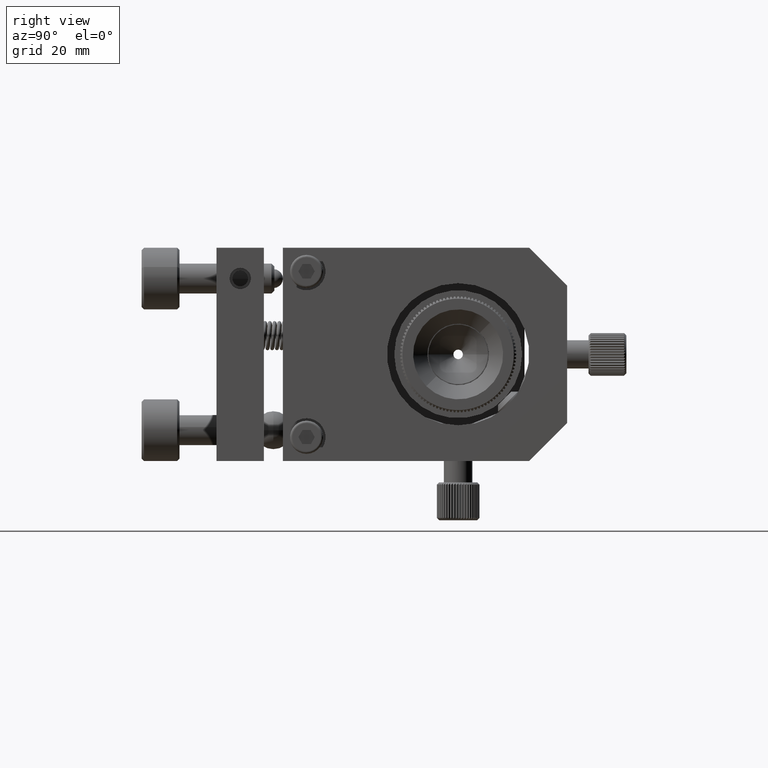
[diagram: clean part render]
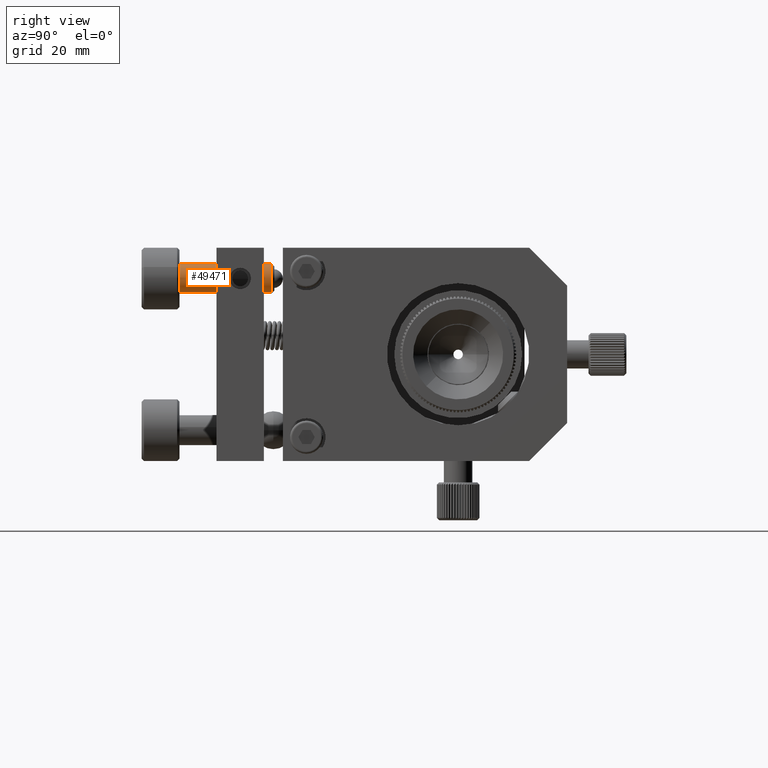
[diagram: same view with one face highlighted and labeled with its STEP entity id]
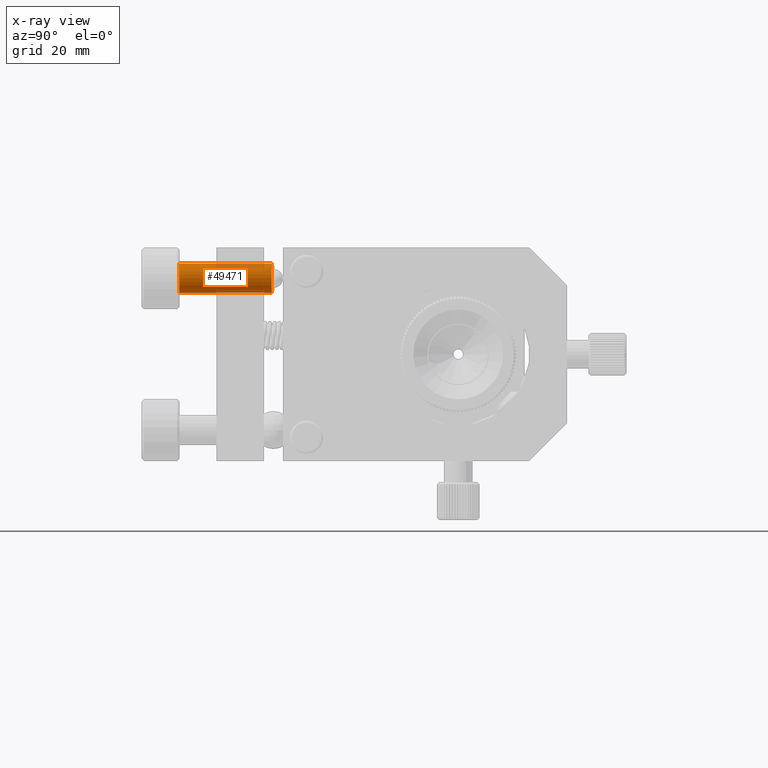
[diagram: x-ray of the same camera — body ghosted, the highlighted face saturated]
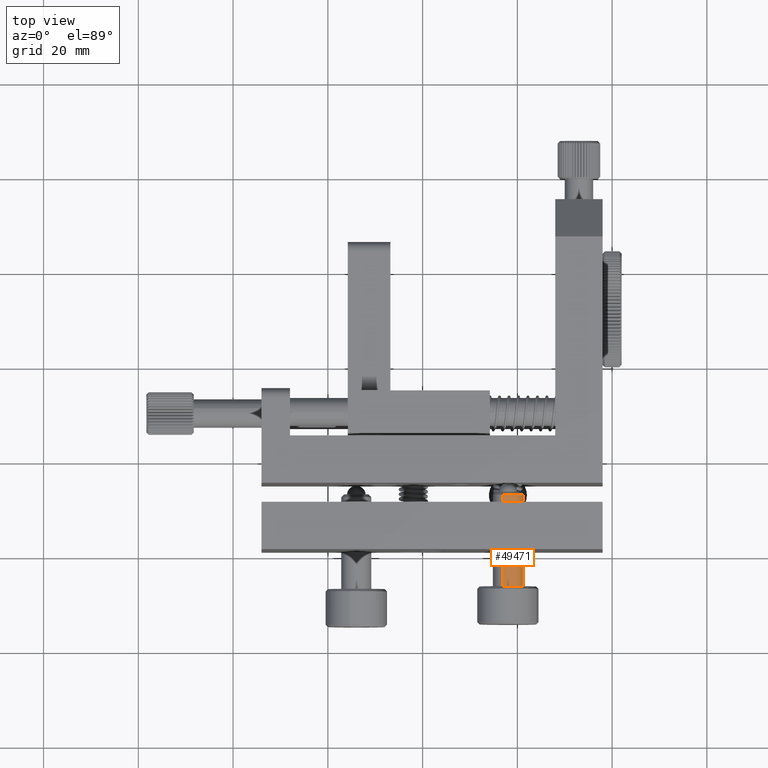
[diagram: same view with one face highlighted and labeled with its STEP entity id]
A machine part, right view. The second image highlights one B-rep face of the part: STEP entity #49471.
The next image is the same camera in x-ray: the body ghosted, the highlighted face saturated — about 12% of this face is hidden behind the body in this view.
A second angle (top view) of the same face is appended — the face is thin or edge-on in the first view.
In plain terms, the highlighted cylindrical surface (edge-blend (fillet) strip) has radius 3.175 mm, axis along (-0, -1, -0).
Its self-contained STEP definition (entity closure, byte-faithful):
#2354 = VERTEX_POINT ( 'NONE', #55713 ) ;
#7906 = EDGE_CURVE ( 'NONE', #58047, #22934, #21869, .T. ) ;
#10266 = AXIS2_PLACEMENT_3D ( 'NONE', #25909, #23058, #57489 ) ;
#11157 = CIRCLE ( 'NONE', #36179, 3.174999999999998000 ) ;
#11658 = ORIENTED_EDGE ( 'NONE', *, *, #64538, .F. ) ;
#11893 = DIRECTION ( 'NONE',  ( -3.700023634175780200E-016, -1.000000000000000000, -6.420384007291740800E-017 ) ) ;
#11928 = LINE ( 'NONE', #28779, #53285 ) ;
#11957 = CARTESIAN_POINT ( 'NONE',  ( 17.99999999999995400, -7.400000000000045700, 16.00000000000000400 ) ) ;
#14851 = VERTEX_POINT ( 'NONE', #38349 ) ;
#16923 = FACE_OUTER_BOUND ( 'NONE', #37486, .T. ) ;
#16998 = DIRECTION ( 'NONE',  ( -0.3765727353977352800, 0.0000000000000000000, 0.9263870546132795300 ) ) ;
#18557 = AXIS2_PLACEMENT_3D ( 'NONE', #32564, #11893, #16998 ) ;
#20709 = ORIENTED_EDGE ( 'NONE', *, *, #61688, .T. ) ;
#21869 = CIRCLE ( 'NONE', #10266, 3.174999999999998900 ) ;
#22934 = VERTEX_POINT ( 'NONE', #51402 ) ;
#23058 = DIRECTION ( 'NONE',  ( 3.469446951953611700E-016, 1.000000000000000000, 1.209268137318281300E-016 ) ) ;
#23187 = DIRECTION ( 'NONE',  ( -3.700023634175780200E-016, -1.000000000000000000, -6.420384007291742000E-017 ) ) ;
#25909 = CARTESIAN_POINT ( 'NONE',  ( 17.99999999999994700, -26.80000000000001100, 15.99999999999999600 ) ) ;
#27626 = DIRECTION ( 'NONE',  ( -3.700023634175780700E-016, -1.000000000000000000, -6.420384007291729700E-017 ) ) ;
#28379 = LINE ( 'NONE', #52436, #42502 ) ;
#28779 = CARTESIAN_POINT ( 'NONE',  ( 19.19561843488776300, -6.800000000000042500, 13.05872110160284400 ) ) ;
#32564 = CARTESIAN_POINT ( 'NONE',  ( 17.99999999999995400, -6.800000000000042500, 16.00000000000000400 ) ) ;
#33933 = CYLINDRICAL_SURFACE ( 'NONE', #18557, 3.174999999999998000 ) ;
#36179 = AXIS2_PLACEMENT_3D ( 'NONE', #11957, #27626, #57502 ) ;
#37486 = EDGE_LOOP ( 'NONE', ( #11658, #20709, #61370, #57010 ) ) ;
#38349 = CARTESIAN_POINT ( 'NONE',  ( 19.19561843488775900, -7.400000000000045700, 13.05872110160284000 ) ) ;
#42502 = VECTOR ( 'NONE', #23187, 1000.000000000000000 ) ;
#44061 = DIRECTION ( 'NONE',  ( -3.700023634175780200E-016, -1.000000000000000000, -6.420384007291742000E-017 ) ) ;
#46180 = CARTESIAN_POINT ( 'NONE',  ( 16.80438156511214100, -26.80000000000001100, 18.94127889839716200 ) ) ;
#49471 = ADVANCED_FACE ( 'NONE', ( #16923 ), #33933, .T. ) ;
#51402 = CARTESIAN_POINT ( 'NONE',  ( 19.19561843488776300, -26.80000000000001100, 13.05872110160283700 ) ) ;
#52436 = CARTESIAN_POINT ( 'NONE',  ( 16.80438156511214500, -6.800000000000042500, 18.94127889839716500 ) ) ;
#53285 = VECTOR ( 'NONE', #44061, 1000.000000000000000 ) ;
#55713 = CARTESIAN_POINT ( 'NONE',  ( 16.80438156511214100, -7.400000000000045700, 18.94127889839716500 ) ) ;
#57010 = ORIENTED_EDGE ( 'NONE', *, *, #7906, .T. ) ;
#57489 = DIRECTION ( 'NONE',  ( 0.9263870546132804100, 0.0000000000000000000, 0.3765727353977330000 ) ) ;
#57502 = DIRECTION ( 'NONE',  ( 0.3765727353977352800, 0.0000000000000000000, -0.9263870546132795300 ) ) ;
#58047 = VERTEX_POINT ( 'NONE', #46180 ) ;
#60568 = EDGE_CURVE ( 'NONE', #2354, #58047, #28379, .T. ) ;
#61370 = ORIENTED_EDGE ( 'NONE', *, *, #60568, .T. ) ;
#61688 = EDGE_CURVE ( 'NONE', #14851, #2354, #11157, .T. ) ;
#64538 = EDGE_CURVE ( 'NONE', #14851, #22934, #11928, .T. ) ;